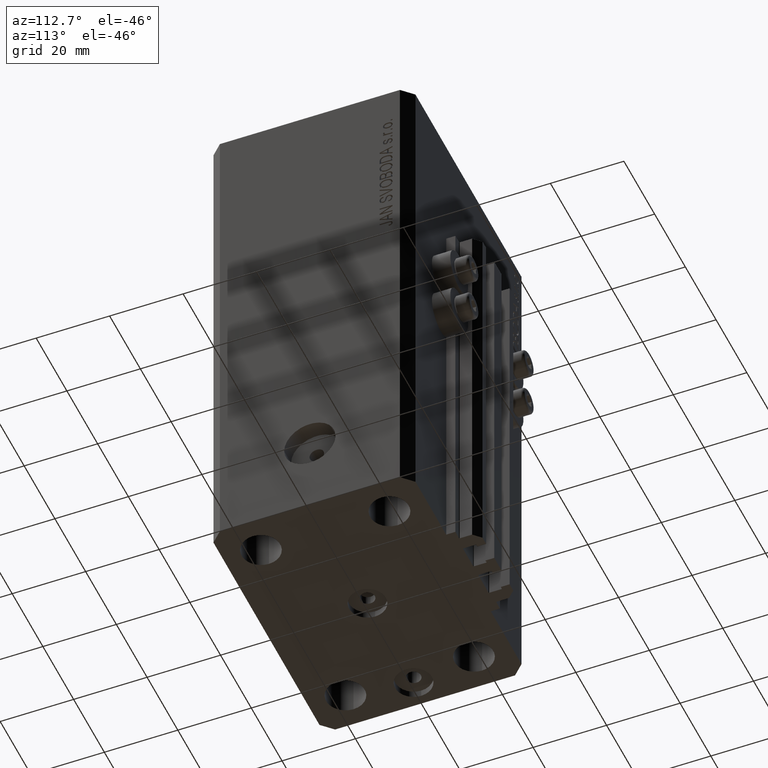
[diagram: clean part render]
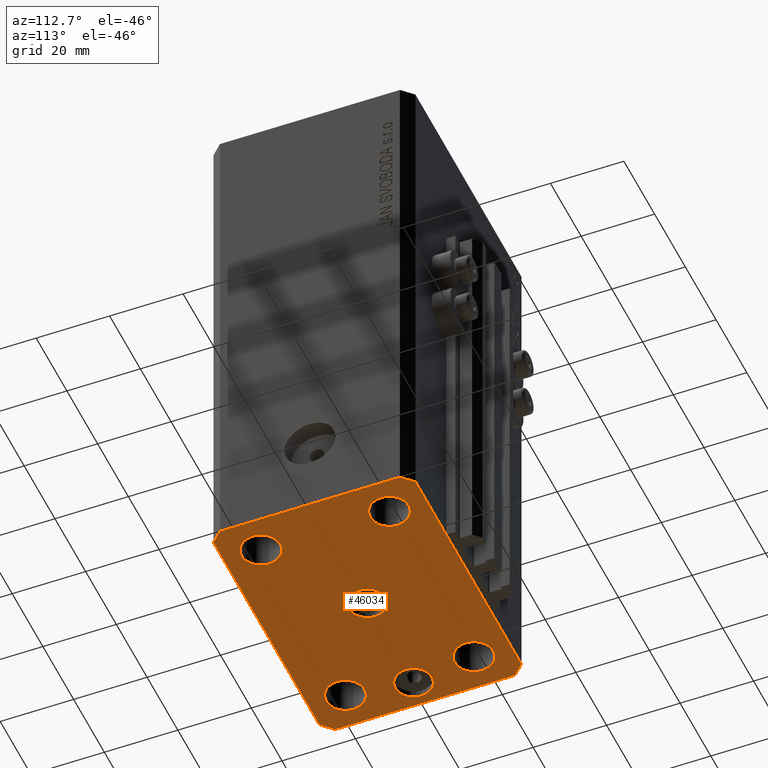
[diagram: same view with one face highlighted and labeled with its STEP entity id]
A machine part, auxiliary view. The second image highlights one B-rep face of the part: STEP entity #46034.
In plain terms, the highlighted planar face has unit normal (0, 0, 1).
Its self-contained STEP definition (entity closure, byte-faithful):
#1020 = CARTESIAN_POINT ( 'NONE',  ( -32.74999999999999289, -17.50000000000000000, -140.0000000000000000 ) ) ;
#1197 = FACE_BOUND ( 'NONE', #17536, .T. ) ;
#1433 = DIRECTION ( 'NONE',  ( -0.000000000000000000, -0.000000000000000000, -1.000000000000000000 ) ) ;
#1677 = PLANE ( 'NONE',  #16269 ) ;
#1900 = CARTESIAN_POINT ( 'NONE',  ( -34.49999999999998579, -27.49999999999999645, -140.0000000000000000 ) ) ;
#1992 = VERTEX_POINT ( 'NONE', #31570 ) ;
#2048 = VERTEX_POINT ( 'NONE', #25153 ) ;
#2482 = CIRCLE ( 'NONE', #11658, 5.250000000000000888 ) ;
#2575 = AXIS2_PLACEMENT_3D ( 'NONE', #30310, #22662, #26730 ) ;
#3133 = EDGE_CURVE ( 'NONE', #18290, #19812, #34459, .T. ) ;
#3149 = DIRECTION ( 'NONE',  ( 0.000000000000000000, 0.000000000000000000, -1.000000000000000000 ) ) ;
#3200 = DIRECTION ( 'NONE',  ( -1.000000000000000000, 0.000000000000000000, 0.000000000000000000 ) ) ;
#3408 = LINE ( 'NONE', #11292, #30407 ) ;
#3910 = EDGE_CURVE ( 'NONE', #19812, #13518, #13288, .T. ) ;
#3925 = CARTESIAN_POINT ( 'NONE',  ( 27.49999999999999289, -17.50000000000000000, -140.0000000000000000 ) ) ;
#4556 = FACE_BOUND ( 'NONE', #38385, .T. ) ;
#4867 = EDGE_CURVE ( 'NONE', #40085, #42824, #20369, .T. ) ;
#5960 = LINE ( 'NONE', #1900, #16194 ) ;
#6152 = CARTESIAN_POINT ( 'NONE',  ( -34.99999999999999289, 0.000000000000000000, -140.0000000000000000 ) ) ;
#6831 = DIRECTION ( 'NONE',  ( 0.7071067811865483499, -0.7071067811865466846, 0.000000000000000000 ) ) ;
#7667 = EDGE_CURVE ( 'NONE', #26937, #9982, #3408, .T. ) ;
#7825 = ORIENTED_EDGE ( 'NONE', *, *, #24403, .F. ) ;
#8156 = AXIS2_PLACEMENT_3D ( 'NONE', #27823, #14190, #17548 ) ;
#8191 = ORIENTED_EDGE ( 'NONE', *, *, #42435, .F. ) ;
#8523 = ORIENTED_EDGE ( 'NONE', *, *, #4867, .F. ) ;
#8550 = CIRCLE ( 'NONE', #42177, 5.250000000000000888 ) ;
#8832 = DIRECTION ( 'NONE',  ( 1.000000000000000000, 0.000000000000000000, 0.000000000000000000 ) ) ;
#8879 = CARTESIAN_POINT ( 'NONE',  ( -37.49999999999999289, 24.50000000000000000, -140.0000000000000000 ) ) ;
#9401 = EDGE_CURVE ( 'NONE', #45733, #10193, #34865, .T. ) ;
#9702 = ORIENTED_EDGE ( 'NONE', *, *, #7667, .F. ) ;
#9891 = CARTESIAN_POINT ( 'NONE',  ( 34.49999999999999289, -27.49999999999999645, -140.0000000000000000 ) ) ;
#9982 = VERTEX_POINT ( 'NONE', #41117 ) ;
#10008 = CARTESIAN_POINT ( 'NONE',  ( 34.50000000000056843, 27.50000000000000000, -140.0000000000000000 ) ) ;
#10177 = DIRECTION ( 'NONE',  ( -0.000000000000000000, -0.000000000000000000, -1.000000000000000000 ) ) ;
#10193 = VERTEX_POINT ( 'NONE', #44435 ) ;
#10473 = ORIENTED_EDGE ( 'NONE', *, *, #34058, .F. ) ;
#10692 = ORIENTED_EDGE ( 'NONE', *, *, #45067, .F. ) ;
#10719 = LINE ( 'NONE', #10008, #36233 ) ;
#11020 = CIRCLE ( 'NONE', #37735, 5.250000000000000888 ) ;
#11292 = CARTESIAN_POINT ( 'NONE',  ( 37.49999999999999289, -24.50000000000000000, -140.0000000000000000 ) ) ;
#11316 = CARTESIAN_POINT ( 'NONE',  ( -32.75000000000000000, 17.49999999999999645, -140.0000000000000000 ) ) ;
#11553 = CARTESIAN_POINT ( 'NONE',  ( 27.49999999999999289, -17.50000000000000000, -140.0000000000000000 ) ) ;
#11658 = AXIS2_PLACEMENT_3D ( 'NONE', #27616, #15928, #38148 ) ;
#12431 = CARTESIAN_POINT ( 'NONE',  ( 0.000000000000000000, 0.000000000000000000, -140.0000000000000000 ) ) ;
#13288 = LINE ( 'NONE', #16876, #45348 ) ;
#13518 = VERTEX_POINT ( 'NONE', #23988 ) ;
#13659 = EDGE_CURVE ( 'NONE', #15471, #2048, #11020, .T. ) ;
#14002 = CIRCLE ( 'NONE', #2575, 5.250000000000000888 ) ;
#14091 = EDGE_CURVE ( 'NONE', #36051, #1992, #10719, .T. ) ;
#14190 = DIRECTION ( 'NONE',  ( 0.000000000000000000, 0.000000000000000000, -1.000000000000000000 ) ) ;
#14264 = EDGE_LOOP ( 'NONE', ( #33388, #7825 ) ) ;
#14558 = VECTOR ( 'NONE', #29451, 1000.000000000000000 ) ;
#14660 = ORIENTED_EDGE ( 'NONE', *, *, #45970, .F. ) ;
#15034 = LINE ( 'NONE', #33671, #36084 ) ;
#15041 = CIRCLE ( 'NONE', #18864, 5.250000000000000888 ) ;
#15471 = VERTEX_POINT ( 'NONE', #44857 ) ;
#15546 = FACE_BOUND ( 'NONE', #36323, .T. ) ;
#15698 = EDGE_CURVE ( 'NONE', #39263, #26937, #31641, .T. ) ;
#15928 = DIRECTION ( 'NONE',  ( -0.000000000000000000, -0.000000000000000000, -1.000000000000000000 ) ) ;
#16194 = VECTOR ( 'NONE', #8832, 1000.000000000000000 ) ;
#16269 = AXIS2_PLACEMENT_3D ( 'NONE', #12431, #44743, #37767 ) ;
#16876 = CARTESIAN_POINT ( 'NONE',  ( -37.49999999999999289, -24.50000000000000000, -140.0000000000000000 ) ) ;
#17299 = CARTESIAN_POINT ( 'NONE',  ( 0.000000000000000000, 0.000000000000000000, -140.0000000000000000 ) ) ;
#17536 = EDGE_LOOP ( 'NONE', ( #39097, #8523 ) ) ;
#17548 = DIRECTION ( 'NONE',  ( -1.000000000000000000, 0.000000000000000000, 0.000000000000000000 ) ) ;
#18290 = VERTEX_POINT ( 'NONE', #24185 ) ;
#18355 = EDGE_CURVE ( 'NONE', #10193, #45733, #34085, .T. ) ;
#18456 = LINE ( 'NONE', #40210, #14558 ) ;
#18669 = CARTESIAN_POINT ( 'NONE',  ( -27.49999999999999289, -17.50000000000000000, -140.0000000000000000 ) ) ;
#18741 = CARTESIAN_POINT ( 'NONE',  ( 5.000000000000000000, 6.123233995736765296E-16, -140.0000000000000000 ) ) ;
#18864 = AXIS2_PLACEMENT_3D ( 'NONE', #20943, #10177, #35522 ) ;
#19564 = CARTESIAN_POINT ( 'NONE',  ( -37.49999999999999289, -24.50000000000000000, -140.0000000000000000 ) ) ;
#19812 = VERTEX_POINT ( 'NONE', #19564 ) ;
#20074 = FACE_BOUND ( 'NONE', #14264, .T. ) ;
#20170 = ORIENTED_EDGE ( 'NONE', *, *, #24010, .F. ) ;
#20369 = CIRCLE ( 'NONE', #8156, 5.000000000000000000 ) ;
#20838 = DIRECTION ( 'NONE',  ( -1.000000000000000000, 0.000000000000000000, 0.000000000000000000 ) ) ;
#20943 = CARTESIAN_POINT ( 'NONE',  ( -27.50000000000000000, 17.49999999999999645, -140.0000000000000000 ) ) ;
#21871 = DIRECTION ( 'NONE',  ( 0.000000000000000000, 0.000000000000000000, -1.000000000000000000 ) ) ;
#22476 = DIRECTION ( 'NONE',  ( 1.000000000000000000, 0.000000000000000000, 0.000000000000000000 ) ) ;
#22662 = DIRECTION ( 'NONE',  ( -0.000000000000000000, -0.000000000000000000, -1.000000000000000000 ) ) ;
#22763 = VERTEX_POINT ( 'NONE', #1020 ) ;
#22953 = FACE_OUTER_BOUND ( 'NONE', #36053, .T. ) ;
#23181 = FACE_BOUND ( 'NONE', #28337, .T. ) ;
#23370 = ORIENTED_EDGE ( 'NONE', *, *, #43919, .F. ) ;
#23828 = CARTESIAN_POINT ( 'NONE',  ( -27.49999999999999289, -17.50000000000000000, -140.0000000000000000 ) ) ;
#23988 = CARTESIAN_POINT ( 'NONE',  ( -34.49999999999998579, -27.49999999999999645, -140.0000000000000000 ) ) ;
#24010 = EDGE_CURVE ( 'NONE', #39967, #45317, #28785, .T. ) ;
#24185 = CARTESIAN_POINT ( 'NONE',  ( -37.49999999999999289, 24.50000000000000000, -140.0000000000000000 ) ) ;
#24403 = EDGE_CURVE ( 'NONE', #31915, #44958, #15041, .T. ) ;
#24756 = ORIENTED_EDGE ( 'NONE', *, *, #3133, .F. ) ;
#25153 = CARTESIAN_POINT ( 'NONE',  ( 32.74999999999999289, -17.50000000000000000, -140.0000000000000000 ) ) ;
#25438 = CIRCLE ( 'NONE', #46836, 5.250000000000000888 ) ;
#26133 = DIRECTION ( 'NONE',  ( 1.000000000000000000, 0.000000000000000000, 0.000000000000000000 ) ) ;
#26310 = FACE_BOUND ( 'NONE', #44891, .T. ) ;
#26730 = DIRECTION ( 'NONE',  ( 1.000000000000000000, 0.000000000000000000, 0.000000000000000000 ) ) ;
#26937 = VERTEX_POINT ( 'NONE', #37690 ) ;
#27026 = CARTESIAN_POINT ( 'NONE',  ( -5.000000000000000000, 0.000000000000000000, -140.0000000000000000 ) ) ;
#27616 = CARTESIAN_POINT ( 'NONE',  ( 27.50000000000000000, 17.49999999999999289, -140.0000000000000000 ) ) ;
#27628 = ORIENTED_EDGE ( 'NONE', *, *, #3910, .F. ) ;
#27823 = CARTESIAN_POINT ( 'NONE',  ( 0.000000000000000000, 0.000000000000000000, -140.0000000000000000 ) ) ;
#28337 = EDGE_LOOP ( 'NONE', ( #10692, #20170 ) ) ;
#28338 = CARTESIAN_POINT ( 'NONE',  ( -30.00000000000000000, 0.000000000000000000, -140.0000000000000000 ) ) ;
#28764 = DIRECTION ( 'NONE',  ( 0.000000000000000000, 0.000000000000000000, -1.000000000000000000 ) ) ;
#28785 = CIRCLE ( 'NONE', #32612, 5.250000000000000888 ) ;
#29127 = CIRCLE ( 'NONE', #42142, 5.250000000000000888 ) ;
#29183 = DIRECTION ( 'NONE',  ( -0.000000000000000000, -0.000000000000000000, -1.000000000000000000 ) ) ;
#29451 = DIRECTION ( 'NONE',  ( -0.7071067811865471286, -0.7071067811865479058, 0.000000000000000000 ) ) ;
#30310 = CARTESIAN_POINT ( 'NONE',  ( -27.50000000000000000, 17.49999999999999645, -140.0000000000000000 ) ) ;
#30407 = VECTOR ( 'NONE', #43107, 1000.000000000000000 ) ;
#30513 = ORIENTED_EDGE ( 'NONE', *, *, #18355, .F. ) ;
#31570 = CARTESIAN_POINT ( 'NONE',  ( -34.49999999999999289, 27.50000000000000000, -140.0000000000000000 ) ) ;
#31641 = LINE ( 'NONE', #9891, #45485 ) ;
#31915 = VERTEX_POINT ( 'NONE', #11316 ) ;
#31949 = VECTOR ( 'NONE', #41641, 1000.000000000000000 ) ;
#32539 = CARTESIAN_POINT ( 'NONE',  ( -30.00000000000000000, 0.000000000000000000, -140.0000000000000000 ) ) ;
#32612 = AXIS2_PLACEMENT_3D ( 'NONE', #34182, #1433, #22476 ) ;
#33096 = AXIS2_PLACEMENT_3D ( 'NONE', #17299, #28764, #3200 ) ;
#33244 = DIRECTION ( 'NONE',  ( 1.000000000000000000, 0.000000000000000000, 0.000000000000000000 ) ) ;
#33388 = ORIENTED_EDGE ( 'NONE', *, *, #46941, .F. ) ;
#33671 = CARTESIAN_POINT ( 'NONE',  ( 37.50000000000051870, 24.49999999999995381, -140.0000000000000000 ) ) ;
#33787 = DIRECTION ( 'NONE',  ( -0.000000000000000000, -0.000000000000000000, -1.000000000000000000 ) ) ;
#34058 = EDGE_CURVE ( 'NONE', #1992, #18290, #18456, .T. ) ;
#34085 = CIRCLE ( 'NONE', #41708, 4.999999999999997335 ) ;
#34182 = CARTESIAN_POINT ( 'NONE',  ( 27.50000000000000000, 17.49999999999999289, -140.0000000000000000 ) ) ;
#34459 = LINE ( 'NONE', #8879, #31949 ) ;
#34865 = CIRCLE ( 'NONE', #39442, 4.999999999999997335 ) ;
#35522 = DIRECTION ( 'NONE',  ( 1.000000000000000000, 0.000000000000000000, 0.000000000000000000 ) ) ;
#35797 = CARTESIAN_POINT ( 'NONE',  ( 22.25000000000000000, 17.49999999999999289, -140.0000000000000000 ) ) ;
#36051 = VERTEX_POINT ( 'NONE', #43349 ) ;
#36053 = EDGE_LOOP ( 'NONE', ( #38811, #42399, #9702, #46829, #37646, #27628, #24756, #10473 ) ) ;
#36084 = VECTOR ( 'NONE', #40371, 1000.000000000000114 ) ;
#36233 = VECTOR ( 'NONE', #39646, 1000.000000000000000 ) ;
#36323 = EDGE_LOOP ( 'NONE', ( #14660, #23370 ) ) ;
#36468 = DIRECTION ( 'NONE',  ( -1.000000000000000000, 0.000000000000000000, 0.000000000000000000 ) ) ;
#36667 = DIRECTION ( 'NONE',  ( 1.000000000000000000, 0.000000000000000000, 0.000000000000000000 ) ) ;
#37646 = ORIENTED_EDGE ( 'NONE', *, *, #40491, .F. ) ;
#37690 = CARTESIAN_POINT ( 'NONE',  ( 37.49999999999999289, -24.50000000000000000, -140.0000000000000000 ) ) ;
#37735 = AXIS2_PLACEMENT_3D ( 'NONE', #11553, #41184, #26133 ) ;
#37767 = DIRECTION ( 'NONE',  ( 1.000000000000000000, 0.000000000000000000, -0.000000000000000000 ) ) ;
#38126 = CARTESIAN_POINT ( 'NONE',  ( -22.24999999999999289, -17.50000000000000000, -140.0000000000000000 ) ) ;
#38148 = DIRECTION ( 'NONE',  ( 1.000000000000000000, 0.000000000000000000, 0.000000000000000000 ) ) ;
#38385 = EDGE_LOOP ( 'NONE', ( #40944, #30513 ) ) ;
#38811 = ORIENTED_EDGE ( 'NONE', *, *, #14091, .F. ) ;
#39097 = ORIENTED_EDGE ( 'NONE', *, *, #41287, .F. ) ;
#39117 = DIRECTION ( 'NONE',  ( -0.000000000000000000, -0.000000000000000000, -1.000000000000000000 ) ) ;
#39196 = CIRCLE ( 'NONE', #33096, 5.000000000000000000 ) ;
#39263 = VERTEX_POINT ( 'NONE', #45833 ) ;
#39442 = AXIS2_PLACEMENT_3D ( 'NONE', #28338, #21871, #36468 ) ;
#39646 = DIRECTION ( 'NONE',  ( -1.000000000000000000, 0.000000000000000000, 0.000000000000000000 ) ) ;
#39967 = VERTEX_POINT ( 'NONE', #35797 ) ;
#40085 = VERTEX_POINT ( 'NONE', #18741 ) ;
#40210 = CARTESIAN_POINT ( 'NONE',  ( -34.49999999999999289, 27.50000000000000000, -140.0000000000000000 ) ) ;
#40371 = DIRECTION ( 'NONE',  ( -0.7071067811865364705, 0.7071067811865584529, 0.000000000000000000 ) ) ;
#40491 = EDGE_CURVE ( 'NONE', #13518, #39263, #5960, .T. ) ;
#40944 = ORIENTED_EDGE ( 'NONE', *, *, #9401, .F. ) ;
#41117 = CARTESIAN_POINT ( 'NONE',  ( 37.50000000000051870, 24.49999999999995381, -140.0000000000000000 ) ) ;
#41161 = VERTEX_POINT ( 'NONE', #38126 ) ;
#41184 = DIRECTION ( 'NONE',  ( -0.000000000000000000, -0.000000000000000000, -1.000000000000000000 ) ) ;
#41287 = EDGE_CURVE ( 'NONE', #42824, #40085, #39196, .T. ) ;
#41641 = DIRECTION ( 'NONE',  ( 0.000000000000000000, -1.000000000000000000, 0.000000000000000000 ) ) ;
#41708 = AXIS2_PLACEMENT_3D ( 'NONE', #32539, #3149, #20838 ) ;
#42142 = AXIS2_PLACEMENT_3D ( 'NONE', #3925, #33787, #36667 ) ;
#42177 = AXIS2_PLACEMENT_3D ( 'NONE', #23828, #39117, #43193 ) ;
#42399 = ORIENTED_EDGE ( 'NONE', *, *, #44730, .F. ) ;
#42435 = EDGE_CURVE ( 'NONE', #2048, #15471, #29127, .T. ) ;
#42824 = VERTEX_POINT ( 'NONE', #27026 ) ;
#43107 = DIRECTION ( 'NONE',  ( 1.076236605503979380E-14, 1.000000000000000000, 0.000000000000000000 ) ) ;
#43193 = DIRECTION ( 'NONE',  ( 1.000000000000000000, 0.000000000000000000, 0.000000000000000000 ) ) ;
#43349 = CARTESIAN_POINT ( 'NONE',  ( 34.50000000000056843, 27.50000000000000000, -140.0000000000000000 ) ) ;
#43691 = CARTESIAN_POINT ( 'NONE',  ( -22.25000000000000000, 17.49999999999999645, -140.0000000000000000 ) ) ;
#43919 = EDGE_CURVE ( 'NONE', #22763, #41161, #8550, .T. ) ;
#44435 = CARTESIAN_POINT ( 'NONE',  ( -25.00000000000000000, 6.123233995736762338E-16, -140.0000000000000000 ) ) ;
#44590 = CARTESIAN_POINT ( 'NONE',  ( 32.75000000000000000, 17.49999999999999289, -140.0000000000000000 ) ) ;
#44686 = ORIENTED_EDGE ( 'NONE', *, *, #13659, .F. ) ;
#44730 = EDGE_CURVE ( 'NONE', #9982, #36051, #15034, .T. ) ;
#44743 = DIRECTION ( 'NONE',  ( 0.000000000000000000, 0.000000000000000000, 1.000000000000000000 ) ) ;
#44857 = CARTESIAN_POINT ( 'NONE',  ( 22.24999999999999289, -17.50000000000000000, -140.0000000000000000 ) ) ;
#44891 = EDGE_LOOP ( 'NONE', ( #8191, #44686 ) ) ;
#44958 = VERTEX_POINT ( 'NONE', #43691 ) ;
#45067 = EDGE_CURVE ( 'NONE', #45317, #39967, #2482, .T. ) ;
#45317 = VERTEX_POINT ( 'NONE', #44590 ) ;
#45348 = VECTOR ( 'NONE', #6831, 1000.000000000000000 ) ;
#45485 = VECTOR ( 'NONE', #46506, 1000.000000000000114 ) ;
#45733 = VERTEX_POINT ( 'NONE', #6152 ) ;
#45833 = CARTESIAN_POINT ( 'NONE',  ( 34.49999999999999289, -27.49999999999999645, -140.0000000000000000 ) ) ;
#45970 = EDGE_CURVE ( 'NONE', #41161, #22763, #25438, .T. ) ;
#46034 = ADVANCED_FACE ( 'NONE', ( #1197, #4556, #15546, #26310, #23181, #20074, #22953 ), #1677, .F. ) ;
#46506 = DIRECTION ( 'NONE',  ( 0.7071067811865474617, 0.7071067811865474617, 0.000000000000000000 ) ) ;
#46829 = ORIENTED_EDGE ( 'NONE', *, *, #15698, .F. ) ;
#46836 = AXIS2_PLACEMENT_3D ( 'NONE', #18669, #29183, #33244 ) ;
#46941 = EDGE_CURVE ( 'NONE', #44958, #31915, #14002, .T. ) ;